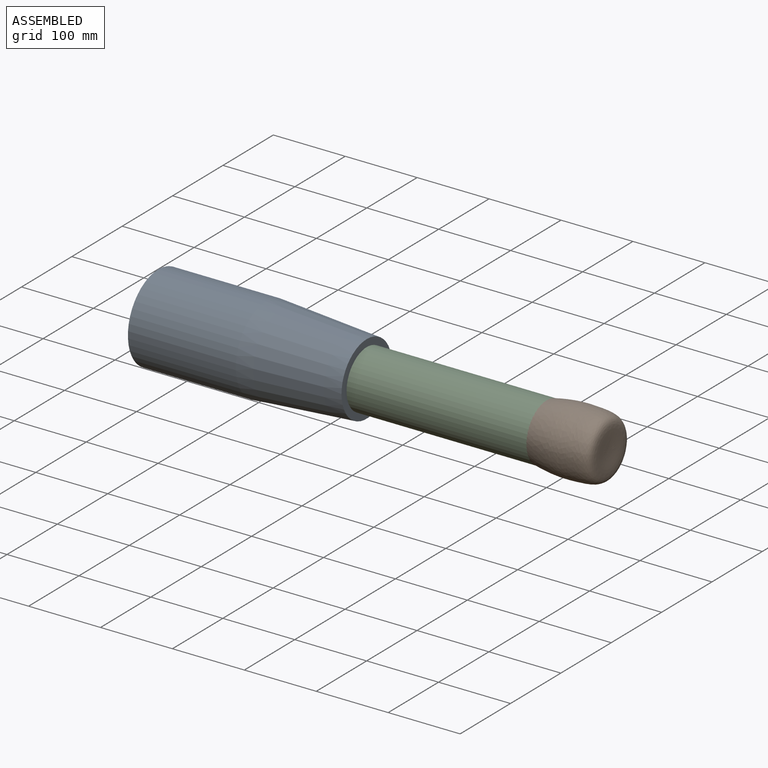
[diagram: assembled view]
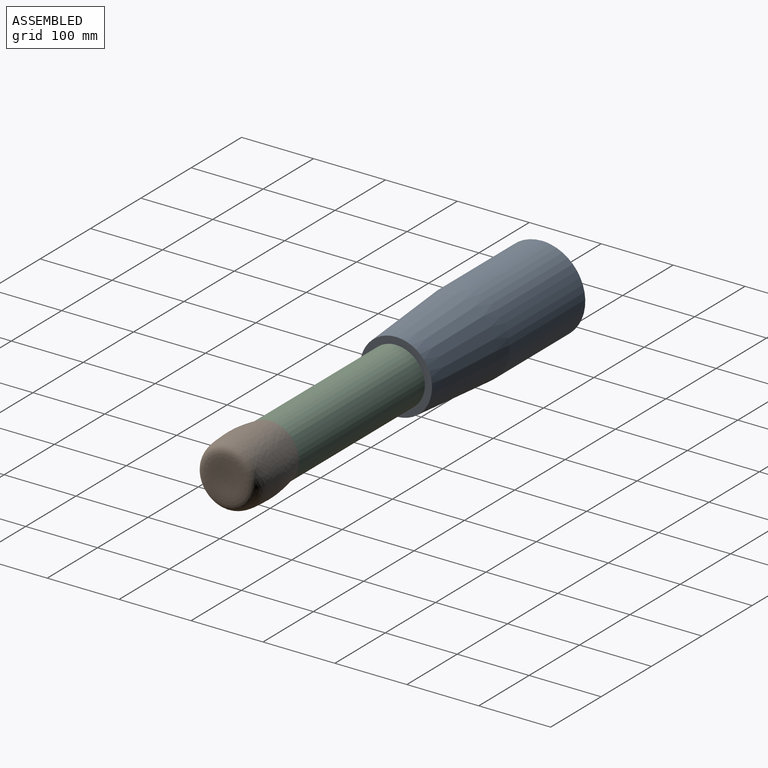
[diagram: assembled view, second angle]
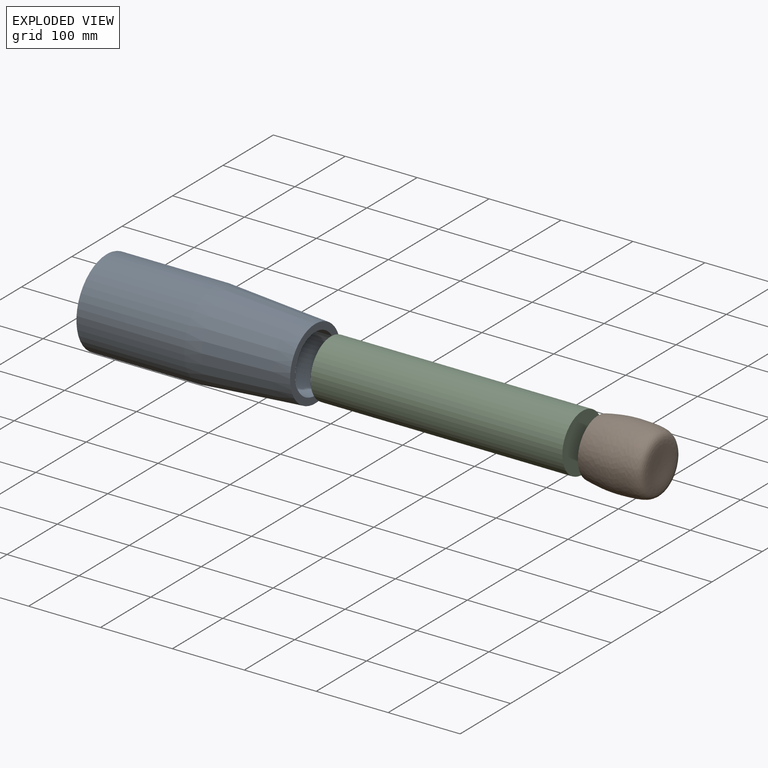
[diagram: exploded view]
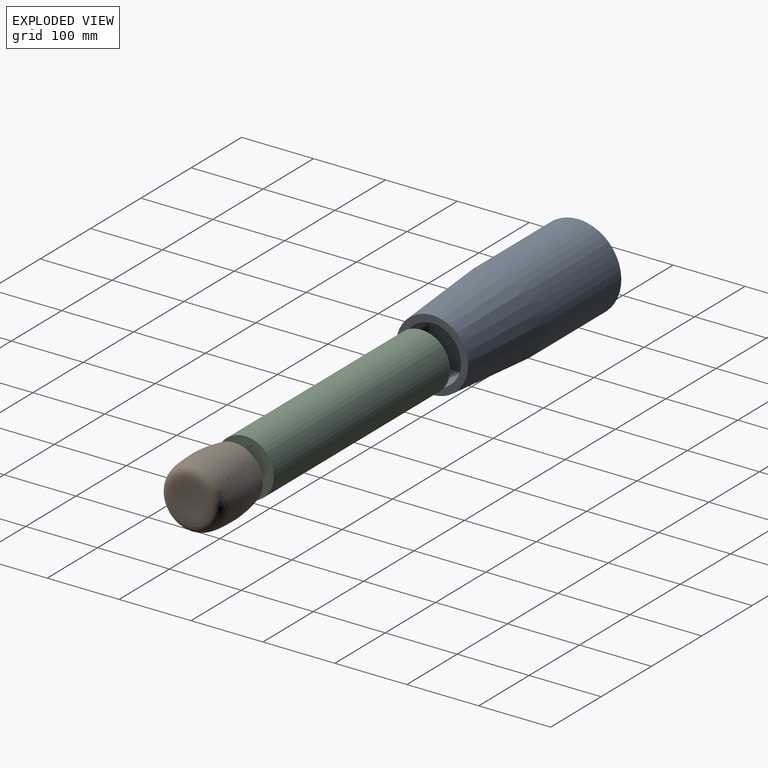
[diagram: exploded view, second angle]
ASSEMBLY  parts=3 mates=2
PART A: 13 faces, bbox 290x120x120 mm
  f0: extruded ~150x120mm, area 56548.7mm2, adj f1,f3
  f1: plane 120x120mm, normal (-1,0,0), area 8819.5mm2, adj f0,f6,f7,f8,f9
  f2: plane 100x100mm, normal (1,0,0), area 2827.4mm2, adj f3,f4
  f3: cone r=60mm half-angle=4.1deg, axis (-1,0,0), area 48503.8mm2, adj f0,f2
  f4: cylinder r=40mm len=80mm, axis (-1,0,0), area 12566.4mm2, adj f2,f5
  f5: plane 80x80mm, normal (1,0,0), area 5026.5mm2, adj f4
  f6: extruded ~25x2.72mm, area 68.1mm2, adj f1,f8,f9,f10
  f7: extruded ~25x2.72mm, area 68.1mm2, adj f1,f8,f9,f11
  f8: plane 172.72x100.01mm, normal (0,1,0), area 17271mm2, adj f1,f6,f7,f10,f11,f12
  f9: plane 172.72x100.01mm, normal (0,-1,0), area 17271mm2, adj f1,f6,f7,f10,f11,f12
  f10: plane 170x25mm, normal (0,0,-1), area 4250mm2, adj f6,f8,f9,f12
  f11: plane 170x25mm, normal (0,0,1), area 4250mm2, adj f7,f8,f9,f12
  f12: plane 100x25mm, normal (-1,0,0), area 2500mm2, adj f8,f9,f10,f11
PART B: 3 faces, bbox 88.1x90x90 mm
  f0: revolved ~89.95x89.95mm, area 28345mm2, adj f1
  f1: cylinder r=40mm len=80mm, axis (-1,0,0), area 12566.4mm2, adj f0,f2
  f2: plane 80x80mm, normal (-1,0,0), area 5026.5mm2, adj f1
PART C: 3 faces, bbox 350x80x80 mm
  f0: cylinder r=40mm len=350mm, axis (-1,0,0), area 87964.6mm2, adj f1,f2
  f1: plane 80x80mm, normal (1,0,0), area 5026.5mm2, adj f0
  f2: plane 80x80mm, normal (-1,0,0), area 5026.5mm2, adj f0
PLACE A at identity fixed
PLACE B at identity
PLACE C at identity
MATE fastened C.f0 <-> B.f1  axis (1,0,0) through (750,0,0)mm
MATE fastened A.f3 <-> C.f0  axis (1,0,0) through (400,0,0)mm
